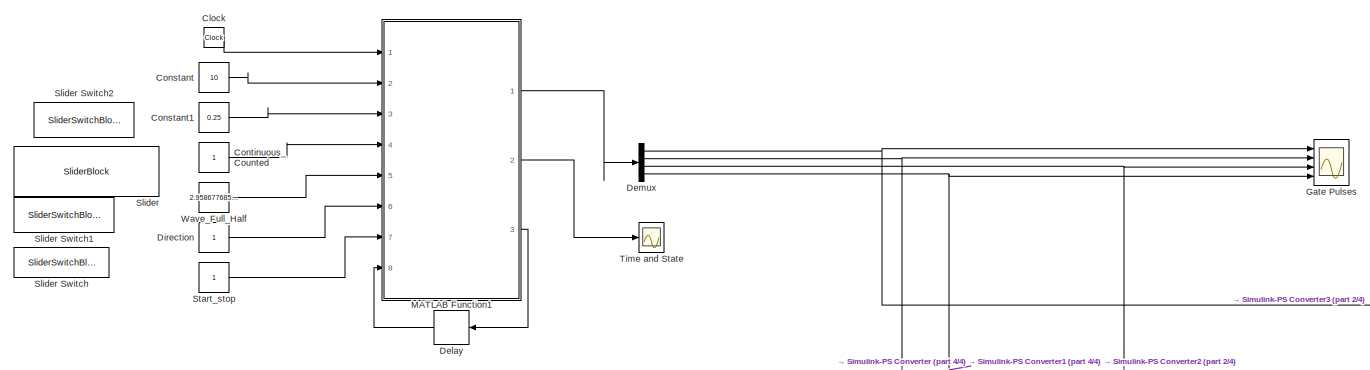
[diagram: root canvas - part 1/4, top left region]
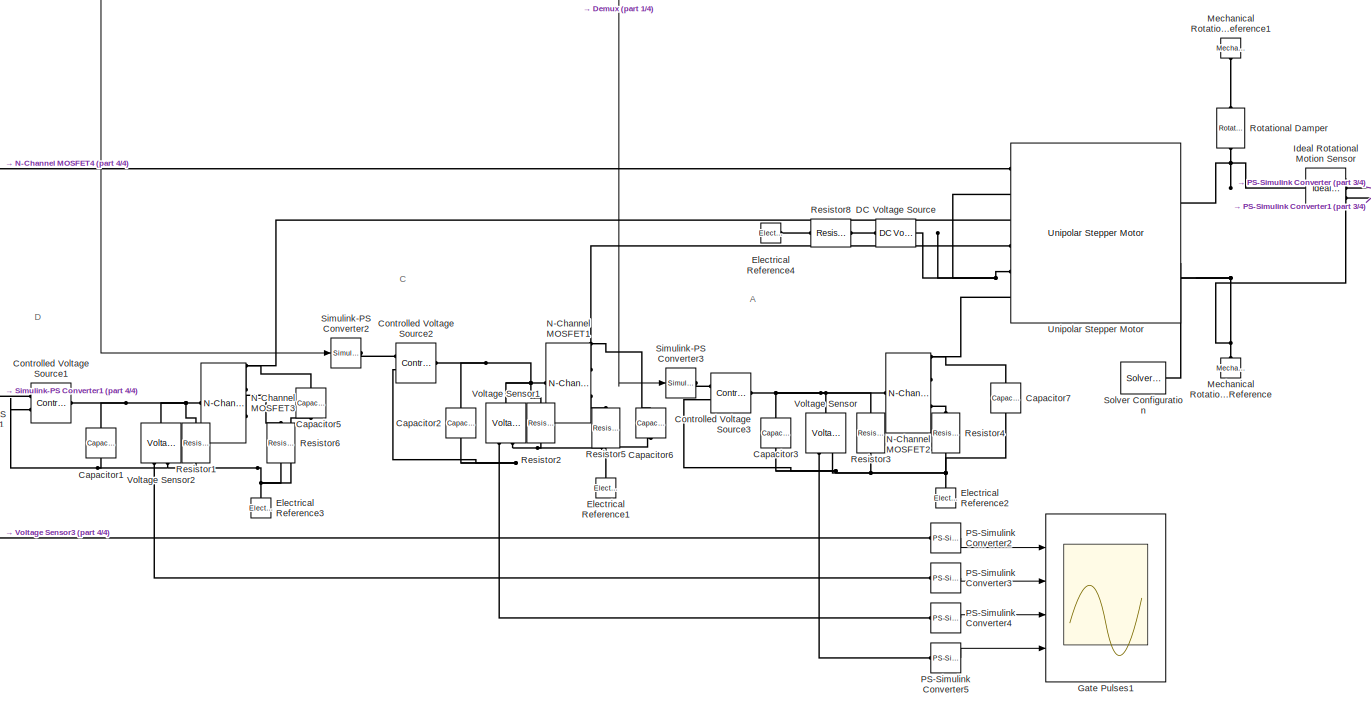
[diagram: root canvas - part 2/4, bottom center region]
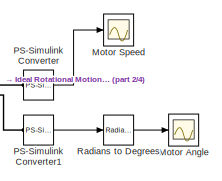
[diagram: root canvas - part 3/4, middle right region]
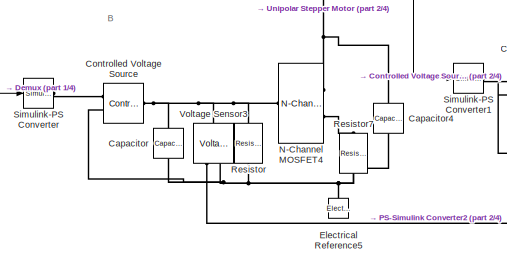
[diagram: root canvas - part 4/4, bottom left region]
MODEL slx_2cc93369cf1a
KIND model
CONFIG AbsTol = auto
CONFIG EnableMultiTasking = off
CONFIG FixedStep = 0.00001
CONFIG MaxStep = 0.0001
CONFIG MinStep = auto
CONFIG RelTol = 100
CONFIG SampleTimeConstraint = Unconstrained
CONFIG Solver = VariableStepAuto
CONFIG SolverName = VariableStepAuto
CONFIG StartTime = 0.0
CONFIG StopTime = inf
BLOCK [Reference] Capacitor  REF=fl_lib/Electrical/Electrical Elements/Capacitor
  Ports = [0, 0, 0, 0, 0, 1, 1]
  SourceBlock = fl_lib/Electrical/Electrical Elements/Capacitor
  SourceProductBaseCode = SS
  SourceType = Capacitor
BLOCK [Reference] Capacitor1  REF=fl_lib/Electrical/Electrical Elements/Capacitor
  Ports = [0, 0, 0, 0, 0, 1, 1]
  SourceBlock = fl_lib/Electrical/Electrical Elements/Capacitor
  SourceProductBaseCode = SS
  SourceType = Capacitor
BLOCK [Reference] Capacitor2  REF=fl_lib/Electrical/Electrical Elements/Capacitor
  Ports = [0, 0, 0, 0, 0, 1, 1]
  SourceBlock = fl_lib/Electrical/Electrical Elements/Capacitor
  SourceProductBaseCode = SS
  SourceType = Capacitor
BLOCK [Reference] Capacitor3  REF=fl_lib/Electrical/Electrical Elements/Capacitor
  Ports = [0, 0, 0, 0, 0, 1, 1]
  SourceBlock = fl_lib/Electrical/Electrical Elements/Capacitor
  SourceProductBaseCode = SS
  SourceType = Capacitor
BLOCK [Reference] Capacitor4  REF=fl_lib/Electrical/Electrical Elements/Capacitor
  Ports = [0, 0, 0, 0, 0, 1, 1]
  SourceBlock = fl_lib/Electrical/Electrical Elements/Capacitor
  SourceProductBaseCode = SS
  SourceType = Capacitor
BLOCK [Reference] Capacitor5  REF=fl_lib/Electrical/Electrical Elements/Capacitor
  Ports = [0, 0, 0, 0, 0, 1, 1]
  SourceBlock = fl_lib/Electrical/Electrical Elements/Capacitor
  SourceProductBaseCode = SS
  SourceType = Capacitor
BLOCK [Reference] Capacitor6  REF=fl_lib/Electrical/Electrical Elements/Capacitor
  Ports = [0, 0, 0, 0, 0, 1, 1]
  SourceBlock = fl_lib/Electrical/Electrical Elements/Capacitor
  SourceProductBaseCode = SS
  SourceType = Capacitor
BLOCK [Reference] Capacitor7  REF=fl_lib/Electrical/Electrical Elements/Capacitor
  Ports = [0, 0, 0, 0, 0, 1, 1]
  SourceBlock = fl_lib/Electrical/Electrical Elements/Capacitor
  SourceProductBaseCode = SS
  SourceType = Capacitor
BLOCK [Clock] Clock
BLOCK [Constant] Constant
  Value = 10
BLOCK [Constant] Constant1
  Value = 0.25
BLOCK [Constant] Continuous_Counted
BLOCK [Reference] Controlled Voltage Source  REF=fl_lib/Electrical/Electrical Sources/Controlled Voltage
Source
  Ports = [0, 0, 0, 0, 0, 1, 2]
  SourceBlock = fl_lib/Electrical/Electrical Sources/Controlled Voltage\nSource
  SourceProductBaseCode = SS
  SourceType = Controlled Voltage\nSource
BLOCK [Reference] Controlled Voltage Source1  REF=fl_lib/Electrical/Electrical Sources/Controlled Voltage
Source
  Ports = [0, 0, 0, 0, 0, 1, 2]
  SourceBlock = fl_lib/Electrical/Electrical Sources/Controlled Voltage\nSource
  SourceProductBaseCode = SS
  SourceType = Controlled Voltage\nSource
BLOCK [Reference] Controlled Voltage Source2  REF=fl_lib/Electrical/Electrical Sources/Controlled Voltage
Source
  Ports = [0, 0, 0, 0, 0, 1, 2]
  SourceBlock = fl_lib/Electrical/Electrical Sources/Controlled Voltage\nSource
  SourceProductBaseCode = SS
  SourceType = Controlled Voltage\nSource
BLOCK [Reference] Controlled Voltage Source3  REF=fl_lib/Electrical/Electrical Sources/Controlled Voltage
Source
  Ports = [0, 0, 0, 0, 0, 1, 2]
  SourceBlock = fl_lib/Electrical/Electrical Sources/Controlled Voltage\nSource
  SourceProductBaseCode = SS
  SourceType = Controlled Voltage\nSource
BLOCK [Reference] DC Voltage Source  REF=fl_lib/Electrical/Electrical Sources/DC Voltage Source
  Ports = [0, 0, 0, 0, 0, 1, 1]
  SourceBlock = fl_lib/Electrical/Electrical Sources/DC Voltage Source
  SourceProductBaseCode = SS
  SourceType = DC Voltage Source
BLOCK [Delay] Delay
  DelayLength = 1
  InitialCondition = [0 1 0 0 0 0 0]
  InputPortMap = u0
  Ports = [1, 1]
BLOCK [Demux] Demux
  Ports = [1, 4]
BLOCK [Constant] Direction 
BLOCK [Reference] Electrical Reference1  REF=fl_lib/Electrical/Electrical Elements/Electrical Reference
  Ports = [0, 0, 0, 0, 0, 1]
  SourceBlock = fl_lib/Electrical/Electrical Elements/Electrical Reference
  SourceProductBaseCode = SS
  SourceType = Electrical Reference
BLOCK [Reference] Electrical Reference2  REF=fl_lib/Electrical/Electrical Elements/Electrical Reference
  Ports = [0, 0, 0, 0, 0, 1]
  SourceBlock = fl_lib/Electrical/Electrical Elements/Electrical Reference
  SourceProductBaseCode = SS
  SourceType = Electrical Reference
BLOCK [Reference] Electrical Reference3  REF=fl_lib/Electrical/Electrical Elements/Electrical Reference
  Ports = [0, 0, 0, 0, 0, 1]
  SourceBlock = fl_lib/Electrical/Electrical Elements/Electrical Reference
  SourceProductBaseCode = SS
  SourceType = Electrical Reference
BLOCK [Reference] Electrical Reference4  REF=fl_lib/Electrical/Electrical Elements/Electrical Reference
  Ports = [0, 0, 0, 0, 0, 1]
  SourceBlock = fl_lib/Electrical/Electrical Elements/Electrical Reference
  SourceProductBaseCode = SS
  SourceType = Electrical Reference
BLOCK [Reference] Electrical Reference5  REF=fl_lib/Electrical/Electrical Elements/Electrical Reference
  Ports = [0, 0, 0, 0, 0, 1]
  SourceBlock = fl_lib/Electrical/Electrical Elements/Electrical Reference
  SourceProductBaseCode = SS
  SourceType = Electrical Reference
BLOCK [Scope] Gate Pulses
  Floating = off
  NumInputPorts = 4
  Ports = [4]
  ScopeSpecificationString = Simulink.scopes.TimeScopeBlockCfg('CurrentConfiguration', extmgr.ConfigurationSet(extmgr.Configuration('Core','General UI',true),extmgr.Configuration('Core','Source UI',true),extmgr.Configuration('Sources','WiredSimulink',true,'DataLoggingVariableName','ScopeData1'),extmgr.Configuration('Visuals','Time Domain',true,'SerializedDisplays',{struct('MinYLimReal','5.00000','MaxYLimReal','7.00000','YLabe...<+3861ch>
BLOCK [Scope] Gate Pulses1
  Floating = off
  NumInputPorts = 4
  Ports = [4]
  ScopeSpecificationString = Simulink.scopes.TimeScopeBlockCfg('CurrentConfiguration', extmgr.ConfigurationSet(extmgr.Configuration('Core','General UI',true),extmgr.Configuration('Core','Source UI',true),extmgr.Configuration('Sources','WiredSimulink',true,'DataLoggingVariableName','ScopeData1'),extmgr.Configuration('Visuals','Time Domain',true,'SerializedDisplays',{struct('MinYLimReal','-0.625','MaxYLimReal','5.625','YLabelRe...<+3519ch>
BLOCK [Reference] Ideal Rotational Motion Sensor  REF=fl_lib/Mechanical/Mechanical Sensors/Ideal Rotational
Motion Sensor
  Ports = [0, 0, 0, 0, 0, 1, 3]
  SourceBlock = fl_lib/Mechanical/Mechanical Sensors/Ideal Rotational\nMotion Sensor
  SourceProductBaseCode = SS
  SourceType = Ideal Rotational\nMotion Sensor
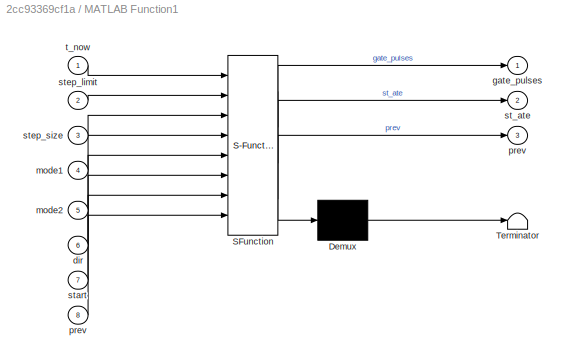
BLOCK [SubSystem] MATLAB Function1
  ErrorFcn = Stateflow.Translate.translate
  PermitHierarchicalResolution = ExplicitOnly
  Ports = [8, 3]
  RequestExecContextInheritance = off
  SFBlockType = MATLAB Function
  TreatAsAtomicUnit = on
BLOCK [Demux] MATLAB Function1/ Demux 
  Outputs = 1
  Ports = [1, 1]
BLOCK [S-Function] MATLAB Function1/ SFunction 
  EnableBusSupport = on
  FunctionName = sf_sfun
  PortCounts = [8 4]
  Ports = [8, 4]
  SFcnIsStateOwnerBlock = off
  SFunctionDeploymentMode = off
  Tag = Stateflow S-Function test_run_working 1
BLOCK [Terminator] MATLAB Function1/ Terminator 
BLOCK [Inport] MATLAB Function1/dir
  Port = 6
BLOCK [Outport] MATLAB Function1/gate_pulses
  VectorParamsAs1DForOutWhenUnconnected = off
BLOCK [Inport] MATLAB Function1/mode1
  Port = 4
BLOCK [Inport] MATLAB Function1/mode2
  Port = 5
BLOCK [Outport] MATLAB Function1/prev
  Port = 3
  VectorParamsAs1DForOutWhenUnconnected = off
BLOCK [Inport] MATLAB Function1/prev 
  Port = 8
BLOCK [Outport] MATLAB Function1/st_ate
  Port = 2
  VectorParamsAs1DForOutWhenUnconnected = off
BLOCK [Inport] MATLAB Function1/start
  Port = 7
BLOCK [Inport] MATLAB Function1/step_limit
  Port = 2
BLOCK [Inport] MATLAB Function1/step_size
  Port = 3
BLOCK [Inport] MATLAB Function1/t_now
BLOCK [Reference] Mechanical Rotational Reference  REF=fl_lib/Mechanical/Rotational Elements/Mechanical
Rotational Reference
  Ports = [0, 0, 0, 0, 0, 1]
  SourceBlock = fl_lib/Mechanical/Rotational Elements/Mechanical\nRotational Reference
  SourceProductBaseCode = SS
  SourceType = Mechanical\nRotational Reference
BLOCK [Reference] Mechanical Rotational Reference1  REF=fl_lib/Mechanical/Rotational Elements/Mechanical
Rotational Reference
  Ports = [0, 0, 0, 0, 0, 1]
  SourceBlock = fl_lib/Mechanical/Rotational Elements/Mechanical\nRotational Reference
  SourceProductBaseCode = SS
  SourceType = Mechanical\nRotational Reference
BLOCK [Scope] Motor Angle
  Floating = off
  NumInputPorts = 1
  Ports = [1]
  ScopeSpecificationString = Simulink.scopes.TimeScopeBlockCfg('CurrentConfiguration', extmgr.ConfigurationSet(extmgr.Configuration('Core','General UI',true,'DisplayFullSourceName',true),extmgr.Configuration('Core','Source UI',true),extmgr.Configuration('Sources','WiredSimulink',true,'DataLoggingVariableName','ScopeData2'),extmgr.Configuration('Visuals','Time Domain',true,'SerializedDisplays',{struct('MinYLimReal','481.5','Ma...<+1689ch>
BLOCK [Scope] Motor Speed
  Floating = off
  NumInputPorts = 1
  Ports = [1]
  ScopeSpecificationString = Simulink.scopes.TimeScopeBlockCfg('CurrentConfiguration', extmgr.ConfigurationSet(extmgr.Configuration('Core','General UI',true),extmgr.Configuration('Core','Source UI',true),extmgr.Configuration('Sources','WiredSimulink',true,'DataLoggingVariableName','ScopeData3'),extmgr.Configuration('Visuals','Time Domain',true,'SerializedDisplays',{struct('MinYLimReal','-0.24053','MaxYLimReal','2.16481','YLab...<+1409ch>
BLOCK [Reference] N-Channel MOSFET1  REF=ee_lib/Semiconductors &
Converters/N-Channel MOSFET
  Ports = [0, 0, 0, 0, 0, 1, 2]
  SourceBlock = ee_lib/Semiconductors &\nConverters/N-Channel MOSFET
  SourceProductBaseCode = PS
  SourceType = N-Channel MOSFET
BLOCK [Reference] N-Channel MOSFET2  REF=ee_lib/Semiconductors &
Converters/N-Channel MOSFET
  Ports = [0, 0, 0, 0, 0, 1, 2]
  SourceBlock = ee_lib/Semiconductors &\nConverters/N-Channel MOSFET
  SourceProductBaseCode = PS
  SourceType = N-Channel MOSFET
BLOCK [Reference] N-Channel MOSFET3  REF=ee_lib/Semiconductors &
Converters/N-Channel MOSFET
  Ports = [0, 0, 0, 0, 0, 1, 2]
  SourceBlock = ee_lib/Semiconductors &\nConverters/N-Channel MOSFET
  SourceProductBaseCode = PS
  SourceType = N-Channel MOSFET
BLOCK [Reference] N-Channel MOSFET4  REF=ee_lib/Semiconductors &
Converters/N-Channel MOSFET
  Ports = [0, 0, 0, 0, 0, 1, 2]
  SourceBlock = ee_lib/Semiconductors &\nConverters/N-Channel MOSFET
  SourceProductBaseCode = PS
  SourceType = N-Channel MOSFET
BLOCK [Reference] PS-Simulink Converter  REF=nesl_utility/PS-Simulink
Converter
  Ports = [0, 1, 0, 0, 0, 1]
  SourceBlock = nesl_utility/PS-Simulink\nConverter
  SourceProductBaseCode = SS
  SourceType = PS-Simulink\nConverter
BLOCK [Reference] PS-Simulink Converter1  REF=nesl_utility/PS-Simulink
Converter
  Ports = [0, 1, 0, 0, 0, 1]
  SourceBlock = nesl_utility/PS-Simulink\nConverter
  SourceProductBaseCode = SS
  SourceType = PS-Simulink\nConverter
BLOCK [Reference] PS-Simulink Converter2  REF=nesl_utility/PS-Simulink
Converter
  Ports = [0, 1, 0, 0, 0, 1]
  SourceBlock = nesl_utility/PS-Simulink\nConverter
  SourceProductBaseCode = SS
  SourceType = PS-Simulink\nConverter
BLOCK [Reference] PS-Simulink Converter3  REF=nesl_utility/PS-Simulink
Converter
  Ports = [0, 1, 0, 0, 0, 1]
  SourceBlock = nesl_utility/PS-Simulink\nConverter
  SourceProductBaseCode = SS
  SourceType = PS-Simulink\nConverter
BLOCK [Reference] PS-Simulink Converter4  REF=nesl_utility/PS-Simulink
Converter
  Ports = [0, 1, 0, 0, 0, 1]
  SourceBlock = nesl_utility/PS-Simulink\nConverter
  SourceProductBaseCode = SS
  SourceType = PS-Simulink\nConverter
BLOCK [Reference] PS-Simulink Converter5  REF=nesl_utility/PS-Simulink
Converter
  Ports = [0, 1, 0, 0, 0, 1]
  SourceBlock = nesl_utility/PS-Simulink\nConverter
  SourceProductBaseCode = SS
  SourceType = PS-Simulink\nConverter
BLOCK [Reference] Radians to Degrees  REF=simulink_extras/Transformations/Radians
to Degrees
  Ports = [1, 1]
  SourceBlock = simulink_extras/Transformations/Radians\nto Degrees
  SourceProductBaseCode = SL
  SourceType = RadiansToDegrees
BLOCK [Reference] Resistor  REF=fl_lib/Electrical/Electrical Elements/Resistor
  Ports = [0, 0, 0, 0, 0, 1, 1]
  SourceBlock = fl_lib/Electrical/Electrical Elements/Resistor
  SourceProductBaseCode = SS
  SourceType = Resistor
BLOCK [Reference] Resistor1  REF=fl_lib/Electrical/Electrical Elements/Resistor
  Ports = [0, 0, 0, 0, 0, 1, 1]
  SourceBlock = fl_lib/Electrical/Electrical Elements/Resistor
  SourceProductBaseCode = SS
  SourceType = Resistor
BLOCK [Reference] Resistor2  REF=fl_lib/Electrical/Electrical Elements/Resistor
  Ports = [0, 0, 0, 0, 0, 1, 1]
  SourceBlock = fl_lib/Electrical/Electrical Elements/Resistor
  SourceProductBaseCode = SS
  SourceType = Resistor
BLOCK [Reference] Resistor3  REF=fl_lib/Electrical/Electrical Elements/Resistor
  Ports = [0, 0, 0, 0, 0, 1, 1]
  SourceBlock = fl_lib/Electrical/Electrical Elements/Resistor
  SourceProductBaseCode = SS
  SourceType = Resistor
BLOCK [Reference] Resistor4  REF=fl_lib/Electrical/Electrical Elements/Resistor
  Ports = [0, 0, 0, 0, 0, 1, 1]
  SourceBlock = fl_lib/Electrical/Electrical Elements/Resistor
  SourceProductBaseCode = SS
  SourceType = Resistor
BLOCK [Reference] Resistor5  REF=fl_lib/Electrical/Electrical Elements/Resistor
  Ports = [0, 0, 0, 0, 0, 1, 1]
  SourceBlock = fl_lib/Electrical/Electrical Elements/Resistor
  SourceProductBaseCode = SS
  SourceType = Resistor
BLOCK [Reference] Resistor6  REF=fl_lib/Electrical/Electrical Elements/Resistor
  Ports = [0, 0, 0, 0, 0, 1, 1]
  SourceBlock = fl_lib/Electrical/Electrical Elements/Resistor
  SourceProductBaseCode = SS
  SourceType = Resistor
BLOCK [Reference] Resistor7  REF=fl_lib/Electrical/Electrical Elements/Resistor
  Ports = [0, 0, 0, 0, 0, 1, 1]
  SourceBlock = fl_lib/Electrical/Electrical Elements/Resistor
  SourceProductBaseCode = SS
  SourceType = Resistor
BLOCK [Reference] Resistor8  REF=fl_lib/Electrical/Electrical Elements/Resistor
  Ports = [0, 0, 0, 0, 0, 1, 1]
  SourceBlock = fl_lib/Electrical/Electrical Elements/Resistor
  SourceProductBaseCode = SS
  SourceType = Resistor
BLOCK [Reference] Rotational Damper  REF=fl_lib/Mechanical/Rotational Elements/Rotational Damper
  Ports = [0, 0, 0, 0, 0, 1, 1]
  SourceBlock = fl_lib/Mechanical/Rotational Elements/Rotational Damper
  SourceProductBaseCode = SS
  SourceType = Rotational Damper
BLOCK [Reference] Simulink-PS Converter  REF=nesl_utility/Simulink-PS
Converter
  Ports = [1, 0, 0, 0, 0, 0, 1]
  SourceBlock = nesl_utility/Simulink-PS\nConverter
  SourceProductBaseCode = SS
  SourceType = Simulink-PS\nConverter
BLOCK [Reference] Simulink-PS Converter1  REF=nesl_utility/Simulink-PS
Converter
  Ports = [1, 0, 0, 0, 0, 0, 1]
  SourceBlock = nesl_utility/Simulink-PS\nConverter
  SourceProductBaseCode = SS
  SourceType = Simulink-PS\nConverter
BLOCK [Reference] Simulink-PS Converter2  REF=nesl_utility/Simulink-PS
Converter
  Ports = [1, 0, 0, 0, 0, 0, 1]
  SourceBlock = nesl_utility/Simulink-PS\nConverter
  SourceProductBaseCode = SS
  SourceType = Simulink-PS\nConverter
BLOCK [Reference] Simulink-PS Converter3  REF=nesl_utility/Simulink-PS
Converter
  Ports = [1, 0, 0, 0, 0, 0, 1]
  SourceBlock = nesl_utility/Simulink-PS\nConverter
  SourceProductBaseCode = SS
  SourceType = Simulink-PS\nConverter
BLOCK [SliderBlock] Slider
  ScaleMax = 3
  ScaleMin = 1
  TickInterval = 1
  WebBlockId = 90
BLOCK [SliderSwitchBlock] Slider Switch
  WebBlockId = 91
BLOCK [SliderSwitchBlock] Slider Switch1
  WebBlockId = 92
BLOCK [SliderSwitchBlock] Slider Switch2
  WebBlockId = 93
BLOCK [Reference] Solver Configuration  REF=nesl_utility/Solver
Configuration
  Ports = [0, 0, 0, 0, 0, 0, 1]
  SourceBlock = nesl_utility/Solver\nConfiguration
  SourceProductBaseCode = SS
  SourceType = Solver\nConfiguration
BLOCK [Constant] Start_stop 
BLOCK [Scope] Time and State
  Floating = off
  NumInputPorts = 1
  Ports = [1]
  ScopeSpecificationString = Simulink.scopes.TimeScopeBlockCfg('CurrentConfiguration', extmgr.ConfigurationSet(extmgr.Configuration('Core','General UI',true),extmgr.Configuration('Core','Source UI',true),extmgr.Configuration('Sources','WiredSimulink',true,'DataLoggingVariableName','ScopeData5'),extmgr.Configuration('Visuals','Time Domain',true,'SerializedDisplays',{struct('MinYLimReal','0.25','MaxYLimReal','7.75','YLabelReal'...<+1495ch>
BLOCK [Reference] Unipolar Stepper Motor  REF=ee_lib/Electromechanical/Reluctance & Stepper/Unipolar Stepper
Motor
  Ports = [0, 0, 0, 0, 0, 6, 2]
  SourceBlock = ee_lib/Electromechanical/Reluctance & Stepper/Unipolar Stepper\nMotor
  SourceProductBaseCode = PS
  SourceType = Unipolar Stepper\nMotor
BLOCK [Reference] Voltage Sensor  REF=fl_lib/Electrical/Electrical Sensors/Voltage Sensor
  Ports = [0, 0, 0, 0, 0, 1, 2]
  SourceBlock = fl_lib/Electrical/Electrical Sensors/Voltage Sensor
  SourceProductBaseCode = SS
  SourceType = Voltage Sensor
BLOCK [Reference] Voltage Sensor1  REF=fl_lib/Electrical/Electrical Sensors/Voltage Sensor
  Ports = [0, 0, 0, 0, 0, 1, 2]
  SourceBlock = fl_lib/Electrical/Electrical Sensors/Voltage Sensor
  SourceProductBaseCode = SS
  SourceType = Voltage Sensor
BLOCK [Reference] Voltage Sensor2  REF=fl_lib/Electrical/Electrical Sensors/Voltage Sensor
  Ports = [0, 0, 0, 0, 0, 1, 2]
  SourceBlock = fl_lib/Electrical/Electrical Sensors/Voltage Sensor
  SourceProductBaseCode = SS
  SourceType = Voltage Sensor
BLOCK [Reference] Voltage Sensor3  REF=fl_lib/Electrical/Electrical Sensors/Voltage Sensor
  Ports = [0, 0, 0, 0, 0, 1, 2]
  SourceBlock = fl_lib/Electrical/Electrical Sensors/Voltage Sensor
  SourceProductBaseCode = SS
  SourceType = Voltage Sensor
BLOCK [Constant] Wave_Full_Half
  Value = 2.958677685950413
ANNOTATION (root): A
ANNOTATION (root): B
ANNOTATION (root): C
ANNOTATION (root): D
LINE Clock:1 -> MATLAB Function1:1
LINE Constant1:1 -> MATLAB Function1:3
LINE Constant:1 -> MATLAB Function1:2
LINE Continuous_Counted:1 -> MATLAB Function1:4
LINE Delay:1 -> MATLAB Function1:8
NET Demux:1 -> Gate Pulses:1, Simulink-PS Converter3:1
NET Demux:2 -> Gate Pulses:2, Simulink-PS Converter:1
NET Demux:3 -> Gate Pulses:3, Simulink-PS Converter2:1
NET Demux:4 -> Gate Pulses:4, Simulink-PS Converter1:1
LINE Direction :1 -> MATLAB Function1:6
LINE MATLAB Function1:1 -> Demux:1
LINE MATLAB Function1:2 -> Time and State:1
LINE MATLAB Function1:3 -> Delay:1
LINE PS-Simulink Converter1:1 -> Radians to Degrees:1
LINE PS-Simulink Converter2:1 -> Gate Pulses1:1
LINE PS-Simulink Converter3:1 -> Gate Pulses1:2
LINE PS-Simulink Converter4:1 -> Gate Pulses1:3
LINE PS-Simulink Converter5:1 -> Gate Pulses1:4
LINE PS-Simulink Converter:1 -> Motor Speed:1
LINE Radians to Degrees:1 -> Motor Angle:1
LINE Start_stop :1 -> MATLAB Function1:7
LINE Wave_Full_Half:1 -> MATLAB Function1:5
PNET net1: Capacitor1:LConn1 -- Controlled Voltage Source1:LConn1 -- N-Channel MOSFET3:LConn1 -- Resistor1:LConn1 -- Voltage Sensor2:LConn1
PNET net2: Capacitor1:RConn1 -- Capacitor5:RConn1 -- Controlled Voltage Source1:RConn2 -- Electrical Reference3:LConn1 -- Resistor1:RConn1 -- Resistor6:RConn1 -- Voltage Sensor2:RConn2
PNET net3: Capacitor2:LConn1 -- Controlled Voltage Source2:LConn1 -- N-Channel MOSFET1:LConn1 -- Resistor2:LConn1 -- Voltage Sensor1:LConn1
PNET net4: Capacitor2:RConn1 -- Capacitor6:RConn1 -- Controlled Voltage Source2:RConn2 -- Electrical Reference1:LConn1 -- Resistor2:RConn1 -- Resistor5:RConn1 -- Voltage Sensor1:RConn2
PNET net5: Capacitor3:LConn1 -- Controlled Voltage Source3:LConn1 -- N-Channel MOSFET2:LConn1 -- Resistor3:LConn1 -- Voltage Sensor:LConn1
PNET net6: Capacitor3:RConn1 -- Capacitor7:RConn1 -- Controlled Voltage Source3:RConn2 -- Electrical Reference2:LConn1 -- Resistor3:RConn1 -- Resistor4:RConn1 -- Voltage Sensor:RConn2
PNET net7: Capacitor4:LConn1 -- N-Channel MOSFET4:RConn1 -- Unipolar Stepper Motor:LConn1
PNET net8: Capacitor4:RConn1 -- Capacitor:RConn1 -- Controlled Voltage Source:RConn2 -- Electrical Reference5:LConn1 -- Resistor7:RConn1 -- Resistor:RConn1 -- Voltage Sensor3:RConn2
PNET net9: Capacitor5:LConn1 -- N-Channel MOSFET3:RConn1 -- Unipolar Stepper Motor:LConn3
PNET net10: Capacitor6:LConn1 -- N-Channel MOSFET1:RConn1 -- Unipolar Stepper Motor:LConn4
PNET net11: Capacitor7:LConn1 -- N-Channel MOSFET2:RConn1 -- Unipolar Stepper Motor:LConn6
PNET net12: Capacitor:LConn1 -- Controlled Voltage Source:LConn1 -- N-Channel MOSFET4:LConn1 -- Resistor:LConn1 -- Voltage Sensor3:LConn1
PLINE Controlled Voltage Source1:RConn1 -- Simulink-PS Converter1:RConn1
PLINE Controlled Voltage Source2:RConn1 -- Simulink-PS Converter2:RConn1
PLINE Controlled Voltage Source3:RConn1 -- Simulink-PS Converter3:RConn1
PLINE Controlled Voltage Source:RConn1 -- Simulink-PS Converter:RConn1
PNET net13: DC Voltage Source:LConn1 -- Unipolar Stepper Motor:LConn2 -- Unipolar Stepper Motor:LConn5
PLINE DC Voltage Source:RConn1 -- Resistor8:LConn1
PLINE Electrical Reference4:LConn1 -- Resistor8:RConn1
PNET net14: Ideal Rotational Motion Sensor:LConn1 -- Rotational Damper:LConn1 -- Unipolar Stepper Motor:RConn1
PNET net15: Ideal Rotational Motion Sensor:RConn1 -- Mechanical Rotational Reference:LConn1 -- Solver Configuration:RConn1 -- Unipolar Stepper Motor:RConn2
PLINE Ideal Rotational Motion Sensor:RConn2 -- PS-Simulink Converter:LConn1
PLINE Ideal Rotational Motion Sensor:RConn3 -- PS-Simulink Converter1:LConn1
PLINE Mechanical Rotational Reference1:LConn1 -- Rotational Damper:RConn1
PLINE N-Channel MOSFET1:RConn2 -- Resistor5:LConn1
PLINE N-Channel MOSFET2:RConn2 -- Resistor4:LConn1
PLINE N-Channel MOSFET3:RConn2 -- Resistor6:LConn1
PLINE N-Channel MOSFET4:RConn2 -- Resistor7:LConn1
PLINE PS-Simulink Converter2:LConn1 -- Voltage Sensor3:RConn1
PLINE PS-Simulink Converter3:LConn1 -- Voltage Sensor2:RConn1
PLINE PS-Simulink Converter4:LConn1 -- Voltage Sensor1:RConn1
PLINE PS-Simulink Converter5:LConn1 -- Voltage Sensor:RConn1
note: NET lines group one-source signal fan-out (src -> all destinations, sorted); 1:1 wires keep LINE; PNET lines group multi-terminal physical nets as a canonical sorted terminal list (undirected conserving connections); 2-terminal nets keep the pairwise PLINE form
CHART MATLAB Function1 states=1 transitions=1
  STATE_LABEL 'eML_blk_kernel()'
  STATE_LABEL 'SCRIPT:\nfunction [gate_pulses,st_ate,prev] = stepper_drive(t_now, step_limit, step_size, mode1, mode2, dir, start, prev)\n\n\n% step_limit = 3;\n% step_size=0.25;\n% mode1 = 2;  % 1=continuous, 2=numbered\nmode2 = round(mode2);  % 1=wave drive, 2=full step, 3=half step\n% dir   = 1;  % -1 = backward, 1 = forward\n% start=1;\n\nst_mat= [1 0 0 0;\n    1 1 0 0;\n    0 1 0 0;\n    0 1 1 0;\n    0 0 1 0;\n    0 0 1 1...<+1647ch>'
